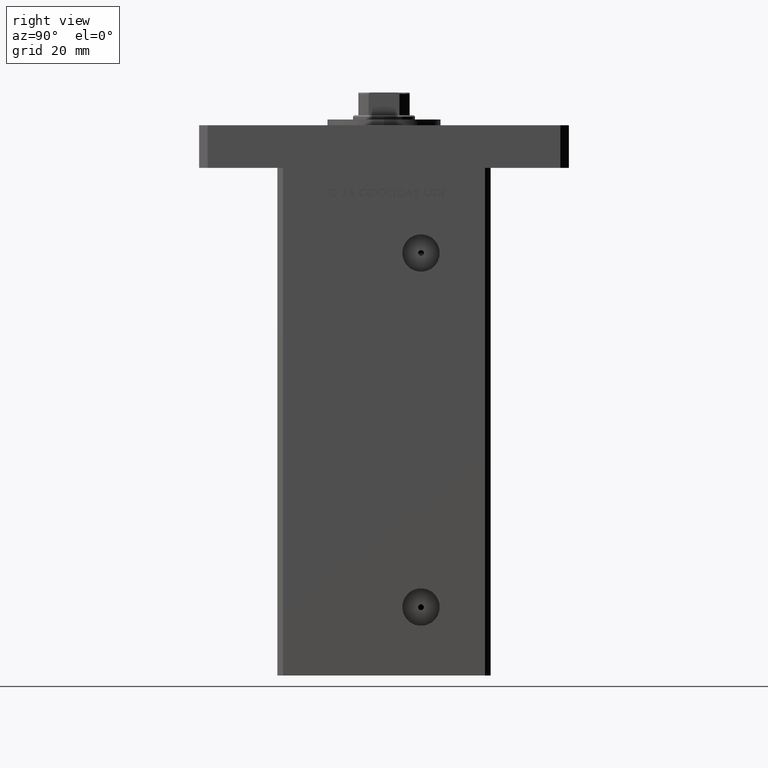
[diagram: clean part render]
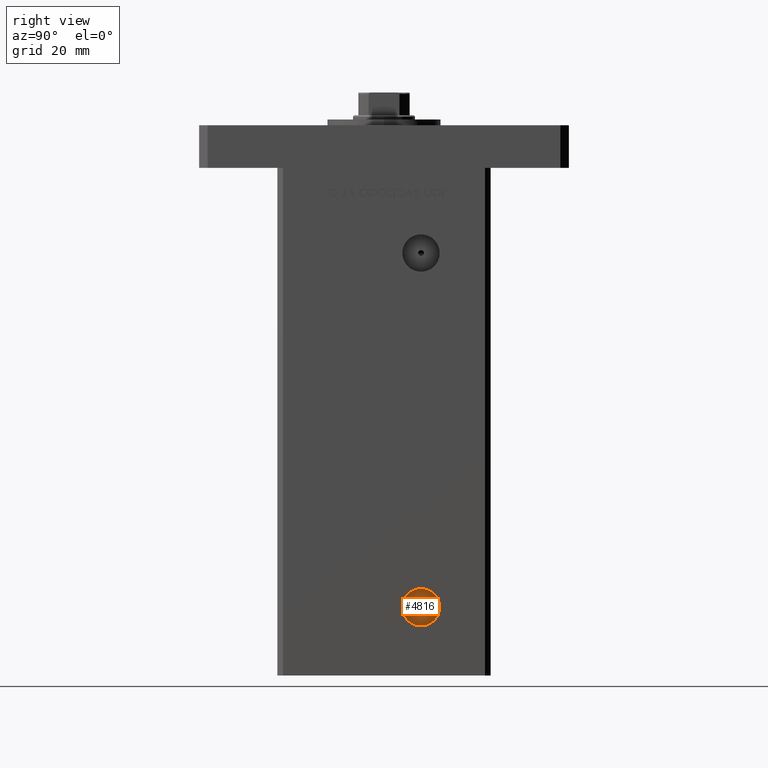
[diagram: same view with one face highlighted and labeled with its STEP entity id]
A machine part, right view. The second image highlights one B-rep face of the part: STEP entity #4816.
In plain terms, the highlighted planar face has unit normal (1, -0, 0).
Its self-contained STEP definition (entity closure, byte-faithful):
#540 = FACE_OUTER_BOUND ( 'NONE', #2282, .T. ) ;
#2265 = EDGE_CURVE ( 'NONE', #9933, #11712, #49029, .T. ) ;
#2282 = EDGE_LOOP ( 'NONE', ( #44332, #33000 ) ) ;
#3049 = ORIENTED_EDGE ( 'NONE', *, *, #3932, .F. ) ;
#3932 = EDGE_CURVE ( 'NONE', #12973, #9714, #25754, .T. ) ;
#3937 = ORIENTED_EDGE ( 'NONE', *, *, #45375, .F. ) ;
#4049 = CARTESIAN_POINT ( 'NONE',  ( 29.50000000000000000, 13.00000000000000355, 9.000000000000007105 ) ) ;
#4816 = ADVANCED_FACE ( 'NONE', ( #41171, #540 ), #37396, .T. ) ;
#7375 = EDGE_LOOP ( 'NONE', ( #3049, #3937 ) ) ;
#8238 = DIRECTION ( 'NONE',  ( 0.000000000000000000, 1.000000000000000000, 0.000000000000000000 ) ) ;
#8483 = DIRECTION ( 'NONE',  ( 1.000000000000000000, -2.275047181608927644E-16, 0.000000000000000000 ) ) ;
#8673 = DIRECTION ( 'NONE',  ( 1.000000000000000000, -2.275047181608927644E-16, 0.000000000000000000 ) ) ;
#9714 = VERTEX_POINT ( 'NONE', #26755 ) ;
#9933 = VERTEX_POINT ( 'NONE', #21825 ) ;
#10973 = EDGE_CURVE ( 'NONE', #11712, #9933, #26780, .T. ) ;
#11207 = CARTESIAN_POINT ( 'NONE',  ( 29.50000000000000000, 13.00000000000000355, 9.000000000000007105 ) ) ;
#11712 = VERTEX_POINT ( 'NONE', #38295 ) ;
#12298 = DIRECTION ( 'NONE',  ( 1.000000000000000000, -2.275047181608927644E-16, 0.000000000000000000 ) ) ;
#12505 = CARTESIAN_POINT ( 'NONE',  ( 29.50000000000000000, 14.00000000000000178, 9.000000000000007105 ) ) ;
#12973 = VERTEX_POINT ( 'NONE', #12505 ) ;
#13612 = CARTESIAN_POINT ( 'NONE',  ( 29.50000000000000000, 13.00000000000000355, 9.000000000000007105 ) ) ;
#17059 = CARTESIAN_POINT ( 'NONE',  ( 29.50000000000000000, 13.00000000000000355, 9.000000000000007105 ) ) ;
#20317 = DIRECTION ( 'NONE',  ( 1.000000000000000000, -2.275047181608927644E-16, 0.000000000000000000 ) ) ;
#21487 = AXIS2_PLACEMENT_3D ( 'NONE', #45353, #12298, #8238 ) ;
#21825 = CARTESIAN_POINT ( 'NONE',  ( 29.50000000000000000, 6.420000000000004370, 9.000000000000007105 ) ) ;
#22863 = DIRECTION ( 'NONE',  ( 0.000000000000000000, 1.000000000000000000, 0.000000000000000000 ) ) ;
#25677 = AXIS2_PLACEMENT_3D ( 'NONE', #11207, #51597, #22863 ) ;
#25754 = CIRCLE ( 'NONE', #50826, 0.9999999999999991118 ) ;
#26755 = CARTESIAN_POINT ( 'NONE',  ( 29.50000000000000000, 12.00000000000000355, 9.000000000000007105 ) ) ;
#26780 = CIRCLE ( 'NONE', #21487, 6.579999999999997407 ) ;
#28362 = AXIS2_PLACEMENT_3D ( 'NONE', #13612, #8483, #33938 ) ;
#33000 = ORIENTED_EDGE ( 'NONE', *, *, #2265, .T. ) ;
#33938 = DIRECTION ( 'NONE',  ( 0.000000000000000000, 1.000000000000000000, 0.000000000000000000 ) ) ;
#36106 = AXIS2_PLACEMENT_3D ( 'NONE', #17059, #20317, #40900 ) ;
#37396 = PLANE ( 'NONE',  #36106 ) ;
#37898 = CIRCLE ( 'NONE', #28362, 0.9999999999999991118 ) ;
#38295 = CARTESIAN_POINT ( 'NONE',  ( 29.50000000000000000, 19.58000000000000185, 9.000000000000007105 ) ) ;
#40900 = DIRECTION ( 'NONE',  ( 2.275047181608927644E-16, 1.000000000000000000, 0.000000000000000000 ) ) ;
#41171 = FACE_BOUND ( 'NONE', #7375, .T. ) ;
#44332 = ORIENTED_EDGE ( 'NONE', *, *, #10973, .T. ) ;
#45353 = CARTESIAN_POINT ( 'NONE',  ( 29.50000000000000000, 13.00000000000000355, 9.000000000000007105 ) ) ;
#45375 = EDGE_CURVE ( 'NONE', #9714, #12973, #37898, .T. ) ;
#45506 = DIRECTION ( 'NONE',  ( 0.000000000000000000, 1.000000000000000000, 0.000000000000000000 ) ) ;
#49029 = CIRCLE ( 'NONE', #25677, 6.579999999999997407 ) ;
#50826 = AXIS2_PLACEMENT_3D ( 'NONE', #4049, #8673, #45506 ) ;
#51597 = DIRECTION ( 'NONE',  ( 1.000000000000000000, -2.275047181608927644E-16, 0.000000000000000000 ) ) ;